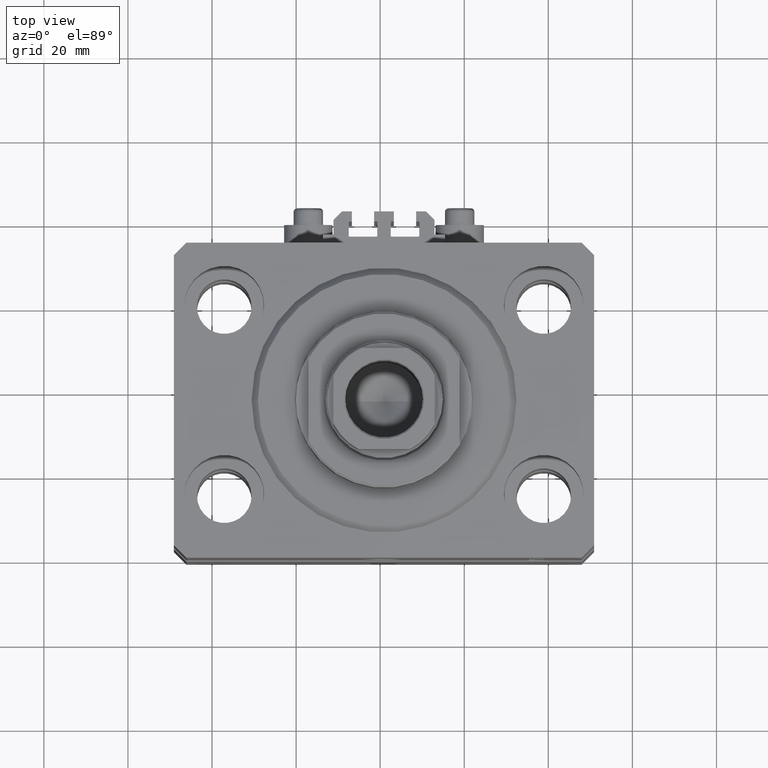
[diagram: clean part render]
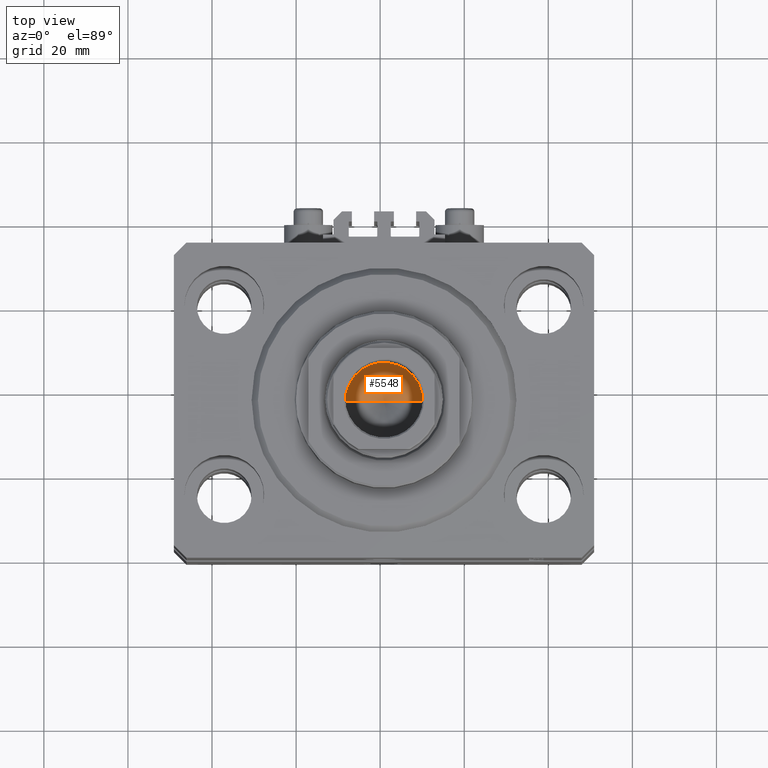
[diagram: same view with one face highlighted and labeled with its STEP entity id]
A machine part, top view. The second image highlights one B-rep face of the part: STEP entity #5548.
In plain terms, the highlighted conical surface has half-angle 59 deg.
Its self-contained STEP definition (entity closure, byte-faithful):
#240 = VECTOR ( 'NONE', #17071, 1000.000000000000000 ) ;
#5548 = ADVANCED_FACE ( 'NONE', ( #14836 ), #8605, .F. ) ;
#6081 = CIRCLE ( 'NONE', #46869, 9.249999999999994671 ) ;
#7166 = CARTESIAN_POINT ( 'NONE',  ( -9.249999999999994671, 1.132798289211300909E-15, 68.09999999999999432 ) ) ;
#7235 = EDGE_CURVE ( 'NONE', #10605, #36550, #28489, .T. ) ;
#7647 = EDGE_LOOP ( 'NONE', ( #29394, #21288, #15794 ) ) ;
#8605 = CONICAL_SURFACE ( 'NONE', #25589, 9.249999999999994671, 1.029744258676653423 ) ;
#10216 = VECTOR ( 'NONE', #42465, 1000.000000000000000 ) ;
#10605 = VERTEX_POINT ( 'NONE', #44170 ) ;
#12174 = EDGE_CURVE ( 'NONE', #10605, #31793, #19987, .T. ) ;
#14836 = FACE_OUTER_BOUND ( 'NONE', #7647, .T. ) ;
#15794 = ORIENTED_EDGE ( 'NONE', *, *, #29129, .T. ) ;
#17071 = DIRECTION ( 'NONE',  ( 0.8571673007021117785, 0.000000000000000000, 0.5150380749100550437 ) ) ;
#19931 = DIRECTION ( 'NONE',  ( -0.000000000000000000, -0.000000000000000000, 1.000000000000000000 ) ) ;
#19987 = LINE ( 'NONE', #27703, #240 ) ;
#21288 = ORIENTED_EDGE ( 'NONE', *, *, #12174, .T. ) ;
#25589 = AXIS2_PLACEMENT_3D ( 'NONE', #32933, #41112, #36772 ) ;
#27703 = CARTESIAN_POINT ( 'NONE',  ( 9.249999999999994671, 0.000000000000000000, 68.09999999999999432 ) ) ;
#28489 = LINE ( 'NONE', #43424, #10216 ) ;
#29129 = EDGE_CURVE ( 'NONE', #31793, #36550, #6081, .T. ) ;
#29394 = ORIENTED_EDGE ( 'NONE', *, *, #7235, .F. ) ;
#31793 = VERTEX_POINT ( 'NONE', #34074 ) ;
#32933 = CARTESIAN_POINT ( 'NONE',  ( 0.000000000000000000, 0.000000000000000000, 68.09999999999999432 ) ) ;
#34074 = CARTESIAN_POINT ( 'NONE',  ( 9.249999999999994671, 0.000000000000000000, 68.09999999999999432 ) ) ;
#35356 = DIRECTION ( 'NONE',  ( 1.000000000000000000, 0.000000000000000000, 0.000000000000000000 ) ) ;
#36550 = VERTEX_POINT ( 'NONE', #7166 ) ;
#36772 = DIRECTION ( 'NONE',  ( 1.000000000000000000, 0.000000000000000000, 0.000000000000000000 ) ) ;
#41112 = DIRECTION ( 'NONE',  ( -0.000000000000000000, -0.000000000000000000, 1.000000000000000000 ) ) ;
#42465 = DIRECTION ( 'NONE',  ( -0.8571673007021117785, 1.049727191138617956E-16, 0.5150380749100550437 ) ) ;
#42812 = CARTESIAN_POINT ( 'NONE',  ( 0.000000000000000000, 0.000000000000000000, 68.09999999999999432 ) ) ;
#43424 = CARTESIAN_POINT ( 'NONE',  ( -9.249999999999994671, 1.132798289211300909E-15, 68.09999999999999432 ) ) ;
#44170 = CARTESIAN_POINT ( 'NONE',  ( -1.046994375366439223E-14, 0.000000000000000000, 62.54203927399505858 ) ) ;
#46869 = AXIS2_PLACEMENT_3D ( 'NONE', #42812, #19931, #35356 ) ;